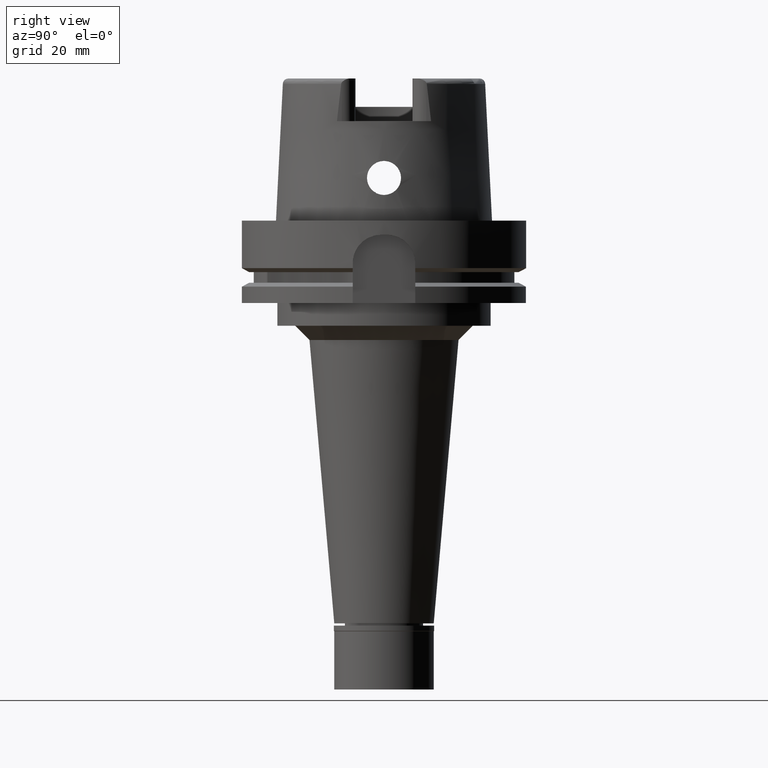
[diagram: clean part render]
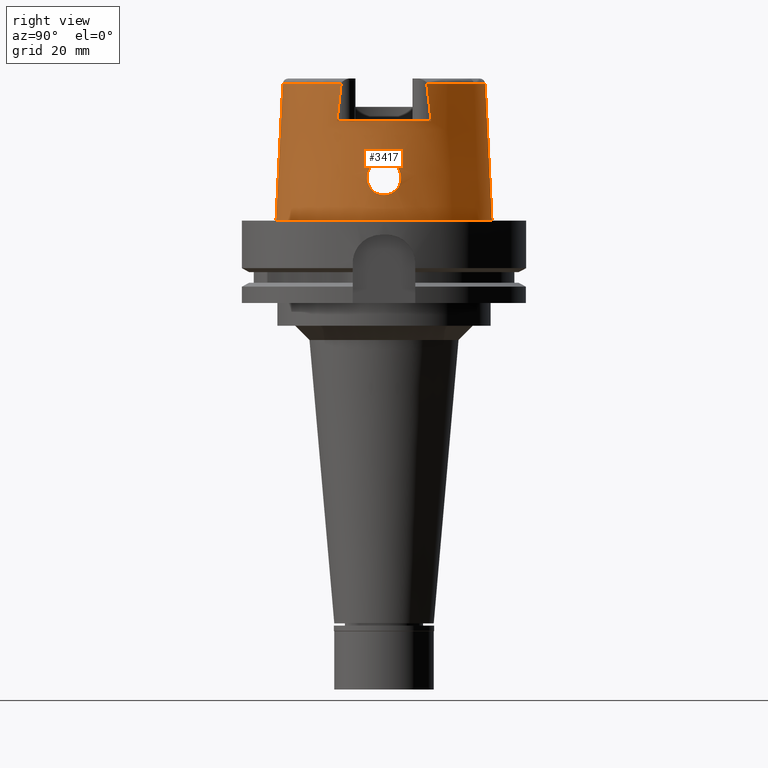
[diagram: same view with one face highlighted and labeled with its STEP entity id]
A machine part, right view. The second image highlights one B-rep face of the part: STEP entity #3417.
In plain terms, the highlighted conical surface has half-angle 2.862 deg.
Its self-contained STEP definition (entity closure, byte-faithful):
#15 = CARTESIAN_POINT ( 'NONE',  ( 36.85457335898542652, -3.253798266388082450, 20.04124897871600552 ) ) ;
#21 = CARTESIAN_POINT ( 'NONE',  ( 36.95523982656145989, 5.529030572524195719, 12.66964793381812804 ) ) ;
#33 = DIRECTION ( 'NONE',  ( 0.0000000000000000000, 0.0000000000000000000, -1.000000000000000000 ) ) ;
#48 = CARTESIAN_POINT ( 'NONE',  ( 37.20135130324674577, 4.363746516816009446, 10.87729898759333125 ) ) ;
#60 = DIRECTION ( 'NONE',  ( 0.9060280460804950309, -0.4232176505245974218, 0.0000000000000000000 ) ) ;
#79 = CARTESIAN_POINT ( 'NONE',  ( 37.35653249525500286, 3.287729809327149866, 9.980948807353369645 ) ) ;
#101 = CARTESIAN_POINT ( 'NONE',  ( 37.04898031199585517, -5.144495187537117431, 11.91180162934593234 ) ) ;
#107 = CARTESIAN_POINT ( 'NONE',  ( 36.77170340283488770, 5.998323807747335756, 14.84586871746355285 ) ) ;
#128 = CARTESIAN_POINT ( 'NONE',  ( 37.39725550713846047, -2.934102071555923175, 9.763118088053772681 ) ) ;
#134 = ORIENTED_EDGE ( 'NONE', *, *, #673, .T. ) ;
#137 = LINE ( 'NONE', #2226, #2557 ) ;
#166 = CARTESIAN_POINT ( 'NONE',  ( 36.86792965853042148, 3.018333182235669820, 20.18926292853594973 ) ) ;
#183 = CARTESIAN_POINT ( 'NONE',  ( 36.78131032406844270, -6.000419801345838522, 14.64910524598040631 ) ) ;
#208 = CARTESIAN_POINT ( 'NONE',  ( 36.86962136150560809, -5.813915311675263098, 13.50336500533334849 ) ) ;
#213 = CARTESIAN_POINT ( 'NONE',  ( 36.71902651044863575, 5.548463823218368951, 17.28354746236227157 ) ) ;
#249 = CARTESIAN_POINT ( 'NONE',  ( 36.93369841153609912, 1.519969756962879170, 20.86588656626253169 ) ) ;
#273 = DIRECTION ( 'NONE',  ( 0.0000000000000000000, 0.0000000000000000000, -1.000000000000000000 ) ) ;
#284 = VERTEX_POINT ( 'NONE', #4235 ) ;
#307 = CARTESIAN_POINT ( 'NONE',  ( 37.55000165825000380, 0.0000000000000000000, 9.000000000000000000 ) ) ;
#357 = CARTESIAN_POINT ( 'NONE',  ( 32.25000000000000000, -16.05145953533661185, 39.57800528547256391 ) ) ;
#396 = ORIENTED_EDGE ( 'NONE', *, *, #2393, .T. ) ;
#411 = CARTESIAN_POINT ( 'NONE',  ( 36.71471743785868114, -5.699807342214346484, 16.91677120293649139 ) ) ;
#418 = CARTESIAN_POINT ( 'NONE',  ( 37.54237954429251545, 0.7534733084072617881, 9.034802869986828355 ) ) ;
#439 = CARTESIAN_POINT ( 'NONE',  ( 36.71620885480069774, -5.813391255872144114, 16.53515844543332491 ) ) ;
#444 = CARTESIAN_POINT ( 'NONE',  ( 37.45939340440281029, 2.264876689963378542, 9.443880539944084163 ) ) ;
#464 = CARTESIAN_POINT ( 'NONE',  ( 36.85123313281129498, -3.313108649127621597, 20.00235078751029150 ) ) ;
#468 = CARTESIAN_POINT ( 'NONE',  ( 37.36305418552947089, 3.233430167436372127, 9.945685231381721891 ) ) ;
#498 = CARTESIAN_POINT ( 'NONE',  ( 37.23074821841457549, 4.183444221697280696, 10.69895465964187231 ) ) ;
#526 = CARTESIAN_POINT ( 'NONE',  ( 36.75576063044550779, -4.821039314594719016, 18.59330048664015322 ) ) ;
#531 = CARTESIAN_POINT ( 'NONE',  ( 37.33690346271502847, 3.448871331198321677, 10.08744184840441172 ) ) ;
#533 = CARTESIAN_POINT ( 'NONE',  ( 32.25000552016999222, -15.06439830907000044, 48.10004152623000095 ) ) ;
#538 = CARTESIAN_POINT ( 'NONE',  ( 0.0000000000000000000, 0.0000000000000000000, 48.09987853799000135 ) ) ;
#553 = CARTESIAN_POINT ( 'NONE',  ( 37.07758419378947679, -5.012585787029593121, 11.70239769246777684 ) ) ;
#558 = CARTESIAN_POINT ( 'NONE',  ( 36.71910958072929532, 5.545544434589466221, 17.29062471906177478 ) ) ;
#577 = CARTESIAN_POINT ( 'NONE',  ( 37.45644412486605290, -2.300685249194733828, 9.458609365823898329 ) ) ;
#608 = CARTESIAN_POINT ( 'NONE',  ( 36.90757951137266701, -5.696189673109968155, 13.11208310118762732 ) ) ;
#609 = EDGE_CURVE ( 'NONE', #1713, #3574, #2088, .T. ) ;
#615 = CARTESIAN_POINT ( 'NONE',  ( 36.85894363251622252, 3.184285589667381622, 20.08887233122822025 ) ) ;
#631 = CARTESIAN_POINT ( 'NONE',  ( 36.76087165488062425, -5.999800204498742850, 15.05438827536548985 ) ) ;
#657 = CARTESIAN_POINT ( 'NONE',  ( 36.94480014967199821, -5.567238668669252100, 12.76255512232842548 ) ) ;
#664 = CARTESIAN_POINT ( 'NONE',  ( 36.76916009664805784, 4.628588925101907670, 18.81937011863950815 ) ) ;
#673 = EDGE_CURVE ( 'NONE', #5516, #1466, #4080, .T. ) ;
#677 = CARTESIAN_POINT ( 'NONE',  ( 0.0000000000000000000, 0.0000000000000000000, 1.023181539494999863E-12 ) ) ;
#707 = DIRECTION ( 'NONE',  ( 0.0000000000000000000, 0.0000000000000000000, 1.000000000000000000 ) ) ;
#739 = LINE ( 'NONE', #2146, #5286 ) ;
#786 = CARTESIAN_POINT ( 'NONE',  ( 32.25000000000000000, 16.05167218318028688, 39.57715456663908071 ) ) ;
#787 = CARTESIAN_POINT ( 'NONE',  ( 32.25000000000000000, -15.55533879080327964, 43.94468579421589993 ) ) ;
#843 = CARTESIAN_POINT ( 'NONE',  ( 36.76566029139615921, 5.999906815838188301, 14.95958094293732010 ) ) ;
#849 = CARTESIAN_POINT ( 'NONE',  ( 32.25000000000000000, -16.55285457013000183, 35.00000000000000000 ) ) ;
#871 = CARTESIAN_POINT ( 'NONE',  ( 36.79780175130938602, -4.187045417410935499, 19.29764023401527950 ) ) ;
#878 = CARTESIAN_POINT ( 'NONE',  ( 36.96306944275978168, 5.499648889126287798, 12.60114552025537904 ) ) ;
#899 = CARTESIAN_POINT ( 'NONE',  ( 36.90237964645319124, -2.272847603763612945, 20.55285577762249360 ) ) ;
#904 = CARTESIAN_POINT ( 'NONE',  ( 37.27380537115670478, 3.905228966958478320, 10.44364606390630712 ) ) ;
#925 = AXIS2_PLACEMENT_3D ( 'NONE', #538, #2232, #60 ) ;
#927 = CARTESIAN_POINT ( 'NONE',  ( 36.87477302239791754, -2.874498647482214064, 20.26753687025442829 ) ) ;
#932 = CARTESIAN_POINT ( 'NONE',  ( 37.35850046496463506, 3.271442713556616422, 9.970292572778369333 ) ) ;
#955 = CARTESIAN_POINT ( 'NONE',  ( 36.79435038799910274, -4.238498976081209513, 19.24680091860885511 ) ) ;
#959 = EDGE_CURVE ( 'NONE', #4144, #284, #1710, .T. ) ;
#963 = CARTESIAN_POINT ( 'NONE',  ( 37.24668042066951301, 4.083403965036357164, 10.60328843659452680 ) ) ;
#984 = CARTESIAN_POINT ( 'NONE',  ( 37.01935567087116397, -5.274353906028143690, 12.13803092428669217 ) ) ;
#990 = CARTESIAN_POINT ( 'NONE',  ( 36.78894780111299667, 4.321307243020732436, 19.16266128978839234 ) ) ;
#1011 = CARTESIAN_POINT ( 'NONE',  ( 37.19964045387644092, -4.369297902691009483, 10.88739804148680790 ) ) ;
#1028 = EDGE_CURVE ( 'NONE', #284, #4144, #2735, .T. ) ;
#1032 = CARTESIAN_POINT ( 'NONE',  ( 32.24997259520495163, 15.06456602571880055, 48.09965197080279609 ) ) ;
#1091 = CARTESIAN_POINT ( 'NONE',  ( 37.10389505768986851, -4.887757585945935013, 11.51449243852074389 ) ) ;
#1097 = CARTESIAN_POINT ( 'NONE',  ( 36.94998175923000616, -1.394597051988999957E-13, 21.00000000000000000 ) ) ;
#1182 = CARTESIAN_POINT ( 'NONE',  ( 37.55000165825000380, 0.0000000000000000000, 9.000000000000000000 ) ) ;
#1192 = ORIENTED_EDGE ( 'NONE', *, *, #959, .F. ) ;
#1198 = CARTESIAN_POINT ( 'NONE',  ( 0.0000000000000000000, 35.59494289391000166, 48.09987853799000135 ) ) ;
#1204 = CARTESIAN_POINT ( 'NONE',  ( 32.24997259520495163, 15.06456602571880055, 48.09965197080279609 ) ) ;
#1285 = CARTESIAN_POINT ( 'NONE',  ( 36.73711114786940612, -5.141475258909128598, 18.09899810859322855 ) ) ;
#1289 = CARTESIAN_POINT ( 'NONE',  ( 37.35521687651922917, 3.298586860848880864, 9.988077525042807991 ) ) ;
#1321 = VERTEX_POINT ( 'NONE', #4785 ) ;
#1323 = CARTESIAN_POINT ( 'NONE',  ( 36.71655597566381601, 5.670117240174047168, 16.96656458700569914 ) ) ;
#1351 = CARTESIAN_POINT ( 'NONE',  ( 37.00631580209579141, 5.327637902192319252, 12.23846285733670669 ) ) ;
#1376 = CARTESIAN_POINT ( 'NONE',  ( 36.81012590804294859, -3.998932515636464124, 19.47498797830987982 ) ) ;
#1380 = CARTESIAN_POINT ( 'NONE',  ( 37.10850795904072896, 4.864945071327960946, 11.48687514057005643 ) ) ;
#1405 = CARTESIAN_POINT ( 'NONE',  ( 37.45415392294571433, -2.328345683967625757, 9.470178937981467371 ) ) ;
#1408 = CARTESIAN_POINT ( 'NONE',  ( 32.25000000000000000, 16.55285457013000183, 35.00000000000000000 ) ) ;
#1412 = CARTESIAN_POINT ( 'NONE',  ( 37.48354635218327502, 1.945613778295967267, 9.322656526190241877 ) ) ;
#1458 = CARTESIAN_POINT ( 'NONE',  ( 36.85246824458380388, -5.860252696474554490, 13.69782209351163260 ) ) ;
#1466 = VERTEX_POINT ( 'NONE', #1032 ) ;
#1469 = EDGE_CURVE ( 'NONE', #1321, #5346, #4822, .T. ) ;
#1482 = CARTESIAN_POINT ( 'NONE',  ( 37.03086444102822838, -5.224993334499239417, 12.04861993317523705 ) ) ;
#1489 = CARTESIAN_POINT ( 'NONE',  ( 36.83279304894314521, 3.623117239833821390, 19.78433902145615164 ) ) ;
#1513 = CARTESIAN_POINT ( 'NONE',  ( 37.42948613191583718, -2.608080179443450497, 9.595763437092866610 ) ) ;
#1518 = CARTESIAN_POINT ( 'NONE',  ( 36.82572834283975993, 3.739103409478851336, 19.69347930708046235 ) ) ;
#1541 = CARTESIAN_POINT ( 'NONE',  ( 36.84474273342841855, 3.423711952798281999, 19.92753559524922125 ) ) ;
#1547 = ORIENTED_EDGE ( 'NONE', *, *, #1677, .T. ) ;
#1677 = EDGE_CURVE ( 'NONE', #3574, #1321, #137, .T. ) ;
#1707 = CARTESIAN_POINT ( 'NONE',  ( 36.90187724948455639, -2.285052347079229662, 20.54784456236087564 ) ) ;
#1710 = B_SPLINE_CURVE_WITH_KNOTS ( 'NONE', 3,
 ( #1182, #2910, #418, #3446, #3558, #4298, #1412, #2140, #4409, #5591, #4377, #444, #2621, #1776, #4349, #1831, #2249, #1712, #468, #932, #79, #1289, #2652, #531, #2191, #3929, #904, #3873, #963, #2688, #498, #3991, #5169, #48, #2224, #3504, #4825, #1380, #3900, #3018, #3965, #1351, #3077, #4740, #878, #1802, #21, #2595, #5231, #4796, #3530, #3145, #5259, #3108, #107, #5288, #843, #2560, #4325, #2163, #1739, #3472, #5198, #1323, #3050, #4770, #5397, #3619, #213, #558, #5364, #4051, #3191, #4496, #664, #4944, #3248, #5419, #990, #2714, #2310, #4438, #2338, #5341, #1518, #1489, #4967, #1541, #2279, #615, #166, #4127, #4463, #4859, #2385, #3674, #249, #4019, #1097 ),
 .UNSPECIFIED., .F., .F.,
 ( 4, 2, 2, 1, 1, 1, 2, 2, 2, 2, 1, 1, 1, 2, 2, 2, 2, 1, 1, 2, 2, 2, 2, 2, 2, 1, 1, 2, 2, 2, 2, 2, 1, 2, 2, 2, 2, 1, 1, 1, 1, 2, 2, 2, 2, 2, 1, 1, 2, 2, 2, 1, 2, 2, 2, 1, 2, 2, 4 ),
 ( 0.0000000000000000000, 0.06250000000000216493, 0.09375000000000321965, 0.1093750000000037748, 0.1171875000000040107, 0.1210937500000041356, 0.1230468750000042327, 0.1250000000000043299, 0.1562500000000069944, 0.1718750000000082434, 0.1796875000000088818, 0.1835937500000091871, 0.1855468750000094091, 0.1865234375000094369, 0.1875000000000094647, 0.2187500000000093536, 0.2343750000000094091, 0.2421875000000095757, 0.2460937500000095757, 0.2480468750000096312, 0.2500000000000096589, 0.2812500000000103251, 0.2968750000000103806, 0.3125000000000104916, 0.3437500000000109912, 0.3593750000000112133, 0.3671875000000112688, 0.3710937500000113243, 0.3750000000000113243, 0.4375000000000090483, 0.4687500000000080491, 0.4843750000000074940, 0.4921875000000073275, 0.4960937500000074385, 0.5000000000000074385, 0.5625000000000063283, 0.5937500000000059952, 0.6093750000000055511, 0.6171875000000053291, 0.6210937500000052180, 0.6230468750000051070, 0.6240234375000049960, 0.6250000000000047740, 0.6875000000000005551, 0.7187499999999984457, 0.7343749999999974465, 0.7421874999999967804, 0.7460937499999965583, 0.7480468749999964473, 0.7499999999999964473, 0.7812499999999974465, 0.7968749999999980016, 0.8046874999999982236, 0.8124999999999984457, 0.8437499999999988898, 0.8593749999999990008, 0.8671874999999990008, 0.8749999999999988898, 1.000000000000000000 ),
 .UNSPECIFIED. ) ;
#1712 = CARTESIAN_POINT ( 'NONE',  ( 37.37200879162801925, 3.157378145736424724, 9.897493814652678523 ) ) ;
#1713 = VERTEX_POINT ( 'NONE', #533 ) ;
#1738 = ORIENTED_EDGE ( 'NONE', *, *, #1028, .F. ) ;
#1739 = CARTESIAN_POINT ( 'NONE',  ( 36.71984044655830814, 5.850219281305478525, 16.34658812609572820 ) ) ;
#1757 = DIRECTION ( 'NONE',  ( 0.8896561898442558736, 0.4566309931134779343, 0.0000000000000000000 ) ) ;
#1776 = CARTESIAN_POINT ( 'NONE',  ( 37.42924552239259128, 2.615721727729253931, 9.596655347580457018 ) ) ;
#1798 = CARTESIAN_POINT ( 'NONE',  ( 36.94998175922999195, -0.3631582503722557975, 21.00000000000000000 ) ) ;
#1802 = CARTESIAN_POINT ( 'NONE',  ( 36.95774489223280312, 5.519693041271791500, 12.64763322400723311 ) ) ;
#1826 = CARTESIAN_POINT ( 'NONE',  ( 36.94685047858938987, -5.559788466716807598, 12.74416401142805277 ) ) ;
#1831 = CARTESIAN_POINT ( 'NONE',  ( 37.39389957565043687, 2.961858504030635331, 9.781037490232705522 ) ) ;
#1832 = DIRECTION ( 'NONE',  ( 5.154182075151068004E-05, -0.04993927430816067631, -0.9987522546783135224 ) ) ;
#1855 = CARTESIAN_POINT ( 'NONE',  ( 37.42175158480954167, -2.689182493007880037, 9.635601683245873517 ) ) ;
#1860 = AXIS2_PLACEMENT_3D ( 'NONE', #2386, #273, #5589 ) ;
#1883 = ORIENTED_EDGE ( 'NONE', *, *, #3598, .F. ) ;
#1888 = EDGE_CURVE ( 'NONE', #5516, #5346, #739, .T. ) ;
#1909 = CARTESIAN_POINT ( 'NONE',  ( 36.93068084710078836, -5.617683048002138690, 12.89133533381973606 ) ) ;
#1935 = CARTESIAN_POINT ( 'NONE',  ( 37.06944078969834777, -5.050823309900860814, 11.76108891316403771 ) ) ;
#1967 = ORIENTED_EDGE ( 'NONE', *, *, #5097, .F. ) ;
#2077 = CARTESIAN_POINT ( 'NONE',  ( 32.25000000000000000, -16.55285457013000183, 35.00000000000000000 ) ) ;
#2088 = CIRCLE ( 'NONE', #925, 35.59494289391000166 ) ;
#2134 = CARTESIAN_POINT ( 'NONE',  ( 36.88764643510791075, -2.613024244806410046, 20.40470655184175897 ) ) ;
#2140 = CARTESIAN_POINT ( 'NONE',  ( 37.47145815582884154, 2.110898902811264133, 9.383189747274018444 ) ) ;
#2146 = CARTESIAN_POINT ( 'NONE',  ( 0.002482252536764999965, 35.59494263424999616, 48.09987853799000135 ) ) ;
#2158 = CARTESIAN_POINT ( 'NONE',  ( 36.72196373336264941, -5.460058584914603941, 17.48791676754009217 ) ) ;
#2163 = CARTESIAN_POINT ( 'NONE',  ( 36.73088728631200439, 5.963273442921371625, 15.76995501670567990 ) ) ;
#2186 = CARTESIAN_POINT ( 'NONE',  ( 36.79486479208713945, -4.230860244557368866, 19.25440632132363916 ) ) ;
#2191 = CARTESIAN_POINT ( 'NONE',  ( 37.31760234860533387, 3.596830974816748849, 10.19359970013341865 ) ) ;
#2224 = CARTESIAN_POINT ( 'NONE',  ( 37.17830824646888033, 4.497059052841780868, 11.02314104154433849 ) ) ;
#2226 = CARTESIAN_POINT ( 'NONE',  ( -0.002482252536761000127, -35.59494263424999616, 48.09987853799000135 ) ) ;
#2232 = DIRECTION ( 'NONE',  ( 0.0000000000000000000, 0.0000000000000000000, -1.000000000000000000 ) ) ;
#2245 = CARTESIAN_POINT ( 'NONE',  ( 36.90313027499487220, -2.254538170085857551, 20.56033827074919529 ) ) ;
#2249 = CARTESIAN_POINT ( 'NONE',  ( 37.37942216537346951, 3.092179744477247638, 9.857921792027235952 ) ) ;
#2272 = CARTESIAN_POINT ( 'NONE',  ( 37.20985621195405457, -4.309484051065490817, 10.82514528163371637 ) ) ;
#2279 = CARTESIAN_POINT ( 'NONE',  ( 36.84722144884868555, 3.382054583841843876, 19.95620573744884396 ) ) ;
#2303 = CARTESIAN_POINT ( 'NONE',  ( 37.21841516280429829, -4.258839404256502981, 10.77359671046755984 ) ) ;
#2310 = CARTESIAN_POINT ( 'NONE',  ( 36.79221695802478820, 4.270941136401894767, 19.21417489450502813 ) ) ;
#2331 = CARTESIAN_POINT ( 'NONE',  ( 37.16180421871322181, -4.583096864683446015, 11.12637670599256090 ) ) ;
#2338 = CARTESIAN_POINT ( 'NONE',  ( 36.80255027986379446, 4.111923164476504411, 19.37386066773265725 ) ) ;
#2348 = AXIS2_PLACEMENT_3D ( 'NONE', #5296, #3150, #2696 ) ;
#2353 = CARTESIAN_POINT ( 'NONE',  ( 37.17923918027624808, -4.486608826909555425, 11.01410227270497089 ) ) ;
#2376 = CARTESIAN_POINT ( 'NONE',  ( 36.96692811447773153, -5.486345123639744692, 12.56527835986519648 ) ) ;
#2385 = CARTESIAN_POINT ( 'NONE',  ( 36.89720180196346888, 2.396385874053454490, 20.50089800302485088 ) ) ;
#2386 = CARTESIAN_POINT ( 'NONE',  ( 0.0000000000000000000, 0.0000000000000000000, 24.04993926899999934 ) ) ;
#2393 = EDGE_CURVE ( 'NONE', #3631, #2788, #2668, .T. ) ;
#2553 = CARTESIAN_POINT ( 'NONE',  ( 36.71932879702220021, -5.538168865273467745, 17.30841963616053647 ) ) ;
#2557 = VECTOR ( 'NONE', #1832, 1000.000000000000227 ) ;
#2559 = B_SPLINE_CURVE_WITH_KNOTS ( 'NONE', 3,
 ( #4179, #786, #4597, #1204 ),
 .UNSPECIFIED., .F., .F.,
 ( 4, 4 ),
 ( 0.0000000000000000000, 1.000000000000000000 ),
 .UNSPECIFIED. ) ;
#2560 = CARTESIAN_POINT ( 'NONE',  ( 36.76455102892791871, 6.000017024433905277, 14.98107322155624033 ) ) ;
#2590 = CARTESIAN_POINT ( 'NONE',  ( 36.73198324550582328, -5.236770646857031863, 17.93428282280029507 ) ) ;
#2595 = CARTESIAN_POINT ( 'NONE',  ( 36.90767284457751884, 5.704294105466313880, 13.09073213763289090 ) ) ;
#2615 = CARTESIAN_POINT ( 'NONE',  ( 36.87019529317930733, -2.964167355062032438, 20.21776577746368631 ) ) ;
#2621 = CARTESIAN_POINT ( 'NONE',  ( 37.44482247248021167, 2.444141203560766140, 9.517352663553841907 ) ) ;
#2646 = CARTESIAN_POINT ( 'NONE',  ( 36.90486097321354464, -2.211800908984793868, 20.57755752650328418 ) ) ;
#2652 = CARTESIAN_POINT ( 'NONE',  ( 37.35442680991058495, 3.305085175248512197, 9.992361906992872633 ) ) ;
#2668 = CIRCLE ( 'NONE', #3936, 36.24995854370000359 ) ;
#2680 = CARTESIAN_POINT ( 'NONE',  ( 36.72417677239266709, -5.403958487521046017, 17.60866077456927670 ) ) ;
#2688 = CARTESIAN_POINT ( 'NONE',  ( 37.23558469666075155, 4.153382017068294907, 10.66978355217547225 ) ) ;
#2696 = DIRECTION ( 'NONE',  ( 0.0000000000000000000, 1.000000000000000000, 0.0000000000000000000 ) ) ;
#2709 = CARTESIAN_POINT ( 'NONE',  ( 36.74781535825380985, -5.991733129801088964, 15.33912322331754119 ) ) ;
#2714 = CARTESIAN_POINT ( 'NONE',  ( 36.79090408789134159, 4.291162142300021465, 19.19358268078471497 ) ) ;
#2735 = B_SPLINE_CURVE_WITH_KNOTS ( 'NONE', 3,
 ( #2989, #1798, #3440, #5164, #3500, #3525, #4766, #4791, #2646, #2245, #899, #1707, #5227, #3071, #2134, #927, #2615, #3416, #4344, #15, #4370, #464, #5254, #3959, #4735, #3869, #1376, #4707, #871, #4405, #2186, #955, #5586, #526, #1285, #2590, #4321, #2680, #2158, #3987, #5139, #3466, #2553, #4292, #411, #439, #3895, #5191, #2793, #2709, #4488, #2766, #631, #2816, #183, #4961, #1458, #208, #4511, #608, #2736, #1909, #4093, #657, #1826, #3554, #3162, #2376, #4536, #984, #1482, #101, #4853, #1935, #4432, #553, #4043, #1091, #3636, #2331, #2353, #1011, #2272, #3666, #5280, #2303, #4068, #5390, #4013, #128, #1855, #1513, #3586, #3611, #3242, #1405, #4457, #577, #5336, #3136, #5313 ),
 .UNSPECIFIED., .F., .F.,
 ( 4, 2, 2, 1, 1, 1, 1, 2, 2, 2, 2, 1, 1, 2, 2, 2, 1, 1, 1, 2, 2, 2, 2, 2, 1, 1, 2, 2, 2, 2, 1, 1, 2, 2, 2, 2, 2, 1, 1, 1, 2, 2, 2, 2, 1, 1, 2, 2, 2, 1, 1, 1, 2, 2, 2, 2, 2, 1, 1, 2, 2, 4 ),
 ( 0.0000000000000000000, 0.06250000000001788847, 0.09375000000002681189, 0.1093750000000311834, 0.1171875000000334038, 0.1210937500000345279, 0.1230468750000350830, 0.1240234375000354022, 0.1250000000000357214, 0.1562500000000410505, 0.1718750000000437428, 0.1796875000000449363, 0.1835937500000455191, 0.1855468750000458245, 0.1875000000000461298, 0.2187500000000495159, 0.2343750000000512368, 0.2421875000000523470, 0.2460937500000529299, 0.2480468750000533740, 0.2500000000000537903, 0.3125000000000658362, 0.3437500000000718869, 0.3593750000000752176, 0.3671875000000768829, 0.3710937500000777156, 0.3730468750000778266, 0.3750000000000779377, 0.4375000000000758837, 0.4687500000000745515, 0.4843750000000737188, 0.4921875000000733302, 0.4960937500000731082, 0.5000000000000728306, 0.5625000000000689448, 0.5937500000000669464, 0.6093750000000658362, 0.6171875000000652811, 0.6210937500000649480, 0.6230468750000646150, 0.6240234375000643929, 0.6250000000000640599, 0.6562500000000583977, 0.6718750000000556222, 0.6796875000000542899, 0.6835937500000537348, 0.6855468750000535127, 0.6875000000000532907, 0.7187500000000508482, 0.7343750000000495159, 0.7421875000000489608, 0.7460937500000486278, 0.7480468750000482947, 0.7500000000000479616, 0.8125000000000358602, 0.8437500000000296430, 0.8593750000000264233, 0.8671875000000249800, 0.8710937500000242029, 0.8730468750000238698, 0.8750000000000235367, 1.000000000000000000 ),
 .UNSPECIFIED. ) ;
#2736 = CARTESIAN_POINT ( 'NONE',  ( 36.92287895974632761, -5.644574785711887976, 12.96493802533631090 ) ) ;
#2766 = CARTESIAN_POINT ( 'NONE',  ( 36.75857722100536051, -5.999184118844500091, 15.10173734124862754 ) ) ;
#2788 = VERTEX_POINT ( 'NONE', #849 ) ;
#2793 = CARTESIAN_POINT ( 'NONE',  ( 36.74230684364371058, -5.981357832372403038, 15.48226559619284259 ) ) ;
#2816 = CARTESIAN_POINT ( 'NONE',  ( 36.76210510960908096, -5.999969291128494753, 15.02948134557362003 ) ) ;
#2825 = FACE_BOUND ( 'NONE', #3650, .T. ) ;
#2910 = CARTESIAN_POINT ( 'NONE',  ( 37.55000165824999669, 0.3725651092509016382, 9.000000000000001776 ) ) ;
#2989 = CARTESIAN_POINT ( 'NONE',  ( 36.94998175923000616, -1.394597051988999957E-13, 21.00000000000000000 ) ) ;
#3015 = CARTESIAN_POINT ( 'NONE',  ( 1.065814103639999922E-14, -35.59494289391000166, 48.09987853799000135 ) ) ;
#3018 = CARTESIAN_POINT ( 'NONE',  ( 37.06201828056726555, 5.085026755938685916, 11.80942053380415224 ) ) ;
#3050 = CARTESIAN_POINT ( 'NONE',  ( 36.71753689262029496, 5.609068337178880093, 17.13138083986102345 ) ) ;
#3061 = ORIENTED_EDGE ( 'NONE', *, *, #1469, .T. ) ;
#3071 = CARTESIAN_POINT ( 'NONE',  ( 36.89508234365349892, -2.448813485944450363, 20.47998432950904757 ) ) ;
#3077 = CARTESIAN_POINT ( 'NONE',  ( 36.98991360867736944, 5.395393654871225131, 12.37181202727904683 ) ) ;
#3108 = CARTESIAN_POINT ( 'NONE',  ( 36.77559331272507848, 5.996032165252452195, 14.77699010446722561 ) ) ;
#3136 = CARTESIAN_POINT ( 'NONE',  ( 37.55000165824999669, -0.7490591626260816316, 8.999999999999994671 ) ) ;
#3145 = CARTESIAN_POINT ( 'NONE',  ( 36.78949159559145698, 5.983486453677170580, 14.54521603343799363 ) ) ;
#3150 = DIRECTION ( 'NONE',  ( 0.0000000000000000000, 0.0000000000000000000, -1.000000000000000000 ) ) ;
#3162 = CARTESIAN_POINT ( 'NONE',  ( 36.94905369668621375, -5.551755325976531097, 12.72446929267389848 ) ) ;
#3191 = CARTESIAN_POINT ( 'NONE',  ( 36.74922096801803661, 4.946676914252337909, 18.40126551933426313 ) ) ;
#3205 = AXIS2_PLACEMENT_3D ( 'NONE', #677, #707, #3980 ) ;
#3242 = CARTESIAN_POINT ( 'NONE',  ( 37.45167754845891039, -2.358007411836528622, 9.482699018384295186 ) ) ;
#3248 = CARTESIAN_POINT ( 'NONE',  ( 36.78079601895127837, 4.447319055200290805, 19.02795957292704898 ) ) ;
#3416 = CARTESIAN_POINT ( 'NONE',  ( 36.86289881187848749, -3.101799393201154942, 20.13631020078212686 ) ) ;
#3417 = ADVANCED_FACE ( 'NONE', ( #5398, #2825 ), #3583, .T. ) ;
#3440 = CARTESIAN_POINT ( 'NONE',  ( 36.94593093642788517, -0.7414479164965097624, 20.96696163294818405 ) ) ;
#3446 = CARTESIAN_POINT ( 'NONE',  ( 37.51951320242009302, 1.326388423854468535, 9.145214055521348584 ) ) ;
#3466 = CARTESIAN_POINT ( 'NONE',  ( 36.71957857212929355, -5.529860257604926943, 17.32825280591639228 ) ) ;
#3472 = CARTESIAN_POINT ( 'NONE',  ( 36.71763611367676816, 5.802818758811371325, 16.53846350269793675 ) ) ;
#3500 = CARTESIAN_POINT ( 'NONE',  ( 36.92871493951894024, -1.515123200040275453, 20.80912843644669863 ) ) ;
#3504 = CARTESIAN_POINT ( 'NONE',  ( 37.14350679644518038, 4.685766028675929284, 11.25122239262510604 ) ) ;
#3525 = CARTESIAN_POINT ( 'NONE',  ( 36.91960058821420176, -1.808267391346471742, 20.72193690257079979 ) ) ;
#3530 = CARTESIAN_POINT ( 'NONE',  ( 36.80815762370472299, 5.957537315258021771, 14.26277308267506605 ) ) ;
#3554 = CARTESIAN_POINT ( 'NONE',  ( 36.94822053460028854, -5.554798339113931505, 12.73190405543532933 ) ) ;
#3558 = CARTESIAN_POINT ( 'NONE',  ( 37.50998555997327344, 1.517592506718254519, 9.191699911534087164 ) ) ;
#3574 = VERTEX_POINT ( 'NONE', #3015 ) ;
#3583 = CONICAL_SURFACE ( 'NONE', #1860, 36.79747973821000073, 0.04996004983832824653 ) ;
#3586 = CARTESIAN_POINT ( 'NONE',  ( 37.44044173439926482, -2.487510234669529474, 9.539756727490857457 ) ) ;
#3598 = EDGE_CURVE ( 'NONE', #1713, #2788, #5252, .T. ) ;
#3611 = CARTESIAN_POINT ( 'NONE',  ( 37.44575798109693210, -2.427495654670445813, 9.512690912785036090 ) ) ;
#3619 = CARTESIAN_POINT ( 'NONE',  ( 36.71889293941500654, 5.553254265580155113, 17.27187298769979762 ) ) ;
#3631 = VERTEX_POINT ( 'NONE', #1408 ) ;
#3636 = CARTESIAN_POINT ( 'NONE',  ( 37.12700342142721155, -4.770419183647396366, 11.35554695570349715 ) ) ;
#3650 = EDGE_LOOP ( 'NONE', ( #1192, #1738 ) ) ;
#3666 = CARTESIAN_POINT ( 'NONE',  ( 37.21423763426104614, -4.283604238065451320, 10.79870414871968975 ) ) ;
#3674 = CARTESIAN_POINT ( 'NONE',  ( 36.89909629768657595, 2.351861135408390702, 20.52010484799364320 ) ) ;
#3824 = EDGE_LOOP ( 'NONE', ( #1883, #5355, #1547, #3061, #4802, #134, #1967, #396 ) ) ;
#3869 = CARTESIAN_POINT ( 'NONE',  ( 36.81715631358961360, -3.887142167145137162, 19.57163267877658086 ) ) ;
#3873 = CARTESIAN_POINT ( 'NONE',  ( 37.25586636942158947, 4.023786229518713675, 10.54893967711427472 ) ) ;
#3895 = CARTESIAN_POINT ( 'NONE',  ( 36.72724461711472088, -5.925783873525110934, 15.96080321652184431 ) ) ;
#3900 = CARTESIAN_POINT ( 'NONE',  ( 37.09653683475418262, 4.923253218619887406, 11.56912527844142424 ) ) ;
#3915 = CARTESIAN_POINT ( 'NONE',  ( 0.0000000000000000000, 0.0000000000000000000, 35.00000000000000000 ) ) ;
#3929 = CARTESIAN_POINT ( 'NONE',  ( 37.28518751128795827, 3.827099167601020202, 10.37798948645318831 ) ) ;
#3936 = AXIS2_PLACEMENT_3D ( 'NONE', #3915, #33, #1757 ) ;
#3959 = CARTESIAN_POINT ( 'NONE',  ( 36.84054995967238000, -3.500639162298696316, 19.87691744490598822 ) ) ;
#3965 = CARTESIAN_POINT ( 'NONE',  ( 37.03946302240268551, 5.186539888120930364, 11.97691283326612322 ) ) ;
#3980 = DIRECTION ( 'NONE',  ( 0.0000000000000000000, -1.000000000000000000, 0.0000000000000000000 ) ) ;
#3987 = CARTESIAN_POINT ( 'NONE',  ( 36.72095926933153720, -5.487190704883518677, 17.42776760261489244 ) ) ;
#3991 = CARTESIAN_POINT ( 'NONE',  ( 37.22750586226005964, 4.203499434744218277, 10.71855292243687963 ) ) ;
#4013 = CARTESIAN_POINT ( 'NONE',  ( 37.37920154022158670, -3.099554088438776667, 9.858807036692315506 ) ) ;
#4019 = CARTESIAN_POINT ( 'NONE',  ( 36.94998175922998485, 0.7278236855996604859, 20.99999999999999289 ) ) ;
#4043 = CARTESIAN_POINT ( 'NONE',  ( 37.07944034949226619, -5.003809135577720113, 11.68910189932267052 ) ) ;
#4051 = CARTESIAN_POINT ( 'NONE',  ( 36.73062635922434538, 5.263057009952135878, 17.90742315771721493 ) ) ;
#4068 = CARTESIAN_POINT ( 'NONE',  ( 37.27342246941189785, -3.931114297973247851, 10.44490115549452369 ) ) ;
#4080 = CIRCLE ( 'NONE', #2348, 35.59494289391000166 ) ;
#4093 = CARTESIAN_POINT ( 'NONE',  ( 36.94004933455767770, -5.584378040715781921, 12.80547493322663932 ) ) ;
#4127 = CARTESIAN_POINT ( 'NONE',  ( 36.88082111617194414, 2.758243680819354893, 20.32933279429382267 ) ) ;
#4144 = VERTEX_POINT ( 'NONE', #307 ) ;
#4179 = CARTESIAN_POINT ( 'NONE',  ( 32.25000000000000000, 16.55285457013000183, 35.00000000000000000 ) ) ;
#4235 = CARTESIAN_POINT ( 'NONE',  ( 36.94998175923000616, -1.394597051988999957E-13, 21.00000000000000000 ) ) ;
#4292 = CARTESIAN_POINT ( 'NONE',  ( 36.71922847700659531, -5.541574442519262789, 17.30024144842391820 ) ) ;
#4298 = CARTESIAN_POINT ( 'NONE',  ( 37.49283580356893708, 1.803149696091535192, 9.276494919455808841 ) ) ;
#4308 = DIRECTION ( 'NONE',  ( -5.154182075159067383E-05, 0.04993927430816067631, -0.9987522546783135224 ) ) ;
#4321 = CARTESIAN_POINT ( 'NONE',  ( 36.72592427970312912, -5.364110252023095882, 17.68975218693689655 ) ) ;
#4325 = CARTESIAN_POINT ( 'NONE',  ( 36.74416363429327248, 5.999695096183402576, 15.38426938624130358 ) ) ;
#4344 = CARTESIAN_POINT ( 'NONE',  ( 36.85914309935986921, -3.171395856282790859, 20.09388249665637716 ) ) ;
#4349 = CARTESIAN_POINT ( 'NONE',  ( 37.40308539954988731, 2.875079783385489307, 9.732794893247037393 ) ) ;
#4370 = CARTESIAN_POINT ( 'NONE',  ( 36.85257459687434789, -3.289353727239169523, 20.01800302703443890 ) ) ;
#4377 = CARTESIAN_POINT ( 'NONE',  ( 37.46043437577900193, 2.251970359333478111, 9.438634198802740016 ) ) ;
#4405 = CARTESIAN_POINT ( 'NONE',  ( 36.79603966127412207, -4.213366307908128050, 19.27173219095945100 ) ) ;
#4409 = CARTESIAN_POINT ( 'NONE',  ( 37.46510143188384490, 2.193262516983267574, 9.415134949131667597 ) ) ;
#4432 = CARTESIAN_POINT ( 'NONE',  ( 37.07431617320635553, -5.027968615200914648, 11.72590029847478377 ) ) ;
#4438 = CARTESIAN_POINT ( 'NONE',  ( 36.79297988199976288, 4.259196576718165872, 19.22603776391197172 ) ) ;
#4457 = CARTESIAN_POINT ( 'NONE',  ( 37.45579137639160905, -2.308598250113387707, 9.461905677801446757 ) ) ;
#4463 = CARTESIAN_POINT ( 'NONE',  ( 36.88711994964776153, 2.625412980662201523, 20.39673761981572753 ) ) ;
#4488 = CARTESIAN_POINT ( 'NONE',  ( 36.75520430954323103, -5.997838674880071608, 15.17282634178888223 ) ) ;
#4496 = CARTESIAN_POINT ( 'NONE',  ( 36.75653007627474267, 4.828228318364913285, 18.56845981743786567 ) ) ;
#4511 = CARTESIAN_POINT ( 'NONE',  ( 36.89778564757059343, -5.727707615563693011, 13.21009850543056530 ) ) ;
#4536 = CARTESIAN_POINT ( 'NONE',  ( 36.98653479186391024, -5.410826303749213473, 12.39968017810307899 ) ) ;
#4597 = CARTESIAN_POINT ( 'NONE',  ( 32.25000000000000000, 15.55558130564939567, 43.94359286779842222 ) ) ;
#4707 = CARTESIAN_POINT ( 'NONE',  ( 36.80191179850883287, -4.125073597687790361, 19.35752356899445914 ) ) ;
#4735 = CARTESIAN_POINT ( 'NONE',  ( 36.83120344499207732, -3.658939787584094105, 19.75930225346712277 ) ) ;
#4738 = CARTESIAN_POINT ( 'NONE',  ( 32.25000552016999222, -15.06439830907000044, 48.10004152623000095 ) ) ;
#4740 = CARTESIAN_POINT ( 'NONE',  ( 36.97107769564209434, 5.469187824416382959, 12.53171190398763457 ) ) ;
#4766 = CARTESIAN_POINT ( 'NONE',  ( 36.91466364792411525, -1.955066589415785483, 20.67420690998008936 ) ) ;
#4770 = CARTESIAN_POINT ( 'NONE',  ( 36.71826982678418716, 5.576903453819993750, 17.21342714077890435 ) ) ;
#4785 = CARTESIAN_POINT ( 'NONE',  ( 0.0000000000000000000, -38.00001658251999714, 6.821210263297000155E-13 ) ) ;
#4791 = CARTESIAN_POINT ( 'NONE',  ( 36.90823929613641496, -2.126273191693851317, 20.61103980981948425 ) ) ;
#4792 = CARTESIAN_POINT ( 'NONE',  ( 0.0000000000000000000, 38.00001658251999714, 1.023181539494999863E-12 ) ) ;
#4796 = CARTESIAN_POINT ( 'NONE',  ( 36.82225838300821152, 5.930942061810208443, 14.07103620846129566 ) ) ;
#4802 = ORIENTED_EDGE ( 'NONE', *, *, #1888, .F. ) ;
#4822 = CIRCLE ( 'NONE', #3205, 38.00001658251999714 ) ;
#4825 = CARTESIAN_POINT ( 'NONE',  ( 37.13186683562777546, 4.746792466653050546, 11.32880154397658146 ) ) ;
#4853 = CARTESIAN_POINT ( 'NONE',  ( 37.05825142641265302, -5.102631713467073560, 11.84271860121377351 ) ) ;
#4859 = CARTESIAN_POINT ( 'NONE',  ( 36.89319844010618255, 2.488527337084657898, 20.45983294521252205 ) ) ;
#4944 = CARTESIAN_POINT ( 'NONE',  ( 36.77364782977051760, 4.558384542432639464, 18.90301816071105989 ) ) ;
#4961 = CARTESIAN_POINT ( 'NONE',  ( 36.80587811518294217, -5.968770580326600239, 14.27426339064203731 ) ) ;
#4967 = CARTESIAN_POINT ( 'NONE',  ( 36.83995049438868818, 3.503891532017768373, 19.87084743243267226 ) ) ;
#5097 = EDGE_CURVE ( 'NONE', #3631, #1466, #2559, .T. ) ;
#5139 = CARTESIAN_POINT ( 'NONE',  ( 36.71996599172546638, -5.517288947232040996, 17.35803693592301755 ) ) ;
#5164 = CARTESIAN_POINT ( 'NONE',  ( 36.93377846802155062, -1.320312059271183447, 20.85622490189979672 ) ) ;
#5169 = CARTESIAN_POINT ( 'NONE',  ( 37.22566677179958816, 4.214813397345712254, 10.72969554206628473 ) ) ;
#5191 = CARTESIAN_POINT ( 'NONE',  ( 36.73238964403623896, -5.953612642405698097, 15.76901430468022980 ) ) ;
#5198 = CARTESIAN_POINT ( 'NONE',  ( 36.71654653490902120, 5.716830651076108438, 16.82420974153285798 ) ) ;
#5227 = CARTESIAN_POINT ( 'NONE',  ( 36.90156843379067908, -2.292518513563296167, 20.54476195610528322 ) ) ;
#5231 = CARTESIAN_POINT ( 'NONE',  ( 36.86953088260263200, 5.819979767166956641, 13.48870076559099829 ) ) ;
#5252 = B_SPLINE_CURVE_WITH_KNOTS ( 'NONE', 3,
 ( #4738, #787, #357, #2077 ),
 .UNSPECIFIED., .F., .F.,
 ( 4, 4 ),
 ( 0.0000000000000000000, 1.000000000000000000 ),
 .UNSPECIFIED. ) ;
#5254 = CARTESIAN_POINT ( 'NONE',  ( 36.85046125195796662, -3.326708208039638404, 19.99331193242085192 ) ) ;
#5259 = CARTESIAN_POINT ( 'NONE',  ( 36.78368377136072098, 5.989813296405976040, 14.63850693618214116 ) ) ;
#5280 = CARTESIAN_POINT ( 'NONE',  ( 37.21715930252655369, -4.266296845163772389, 10.78113008883858903 ) ) ;
#5286 = VECTOR ( 'NONE', #4308, 1000.000000000000227 ) ;
#5288 = CARTESIAN_POINT ( 'NONE',  ( 36.76804647208612664, 5.999429092852061274, 14.91417425353873405 ) ) ;
#5296 = CARTESIAN_POINT ( 'NONE',  ( 0.0000000000000000000, 0.0000000000000000000, 48.09987853799000135 ) ) ;
#5313 = CARTESIAN_POINT ( 'NONE',  ( 37.55000165825000380, 0.0000000000000000000, 9.000000000000000000 ) ) ;
#5336 = CARTESIAN_POINT ( 'NONE',  ( 37.51913731733982615, -1.534104571059917488, 9.142248273737109798 ) ) ;
#5341 = CARTESIAN_POINT ( 'NONE',  ( 36.81172258308920675, 3.966476796719705877, 19.50617699077162825 ) ) ;
#5346 = VERTEX_POINT ( 'NONE', #4792 ) ;
#5355 = ORIENTED_EDGE ( 'NONE', *, *, #609, .T. ) ;
#5364 = CARTESIAN_POINT ( 'NONE',  ( 36.72267357466381554, 5.422019584404793591, 17.58897493195064143 ) ) ;
#5390 = CARTESIAN_POINT ( 'NONE',  ( 37.31986989406253485, -3.597220678729216026, 10.18165942247635947 ) ) ;
#5397 = CARTESIAN_POINT ( 'NONE',  ( 36.71869691278758552, 5.560410601731428315, 17.25435409544361320 ) ) ;
#5398 = FACE_OUTER_BOUND ( 'NONE', #3824, .T. ) ;
#5419 = CARTESIAN_POINT ( 'NONE',  ( 36.78447426091591410, 4.390347064633801644, 19.09029678280323239 ) ) ;
#5516 = VERTEX_POINT ( 'NONE', #1198 ) ;
#5586 = CARTESIAN_POINT ( 'NONE',  ( 36.77254798614335840, -4.561075754843173513, 18.92336579966082155 ) ) ;
#5589 = DIRECTION ( 'NONE',  ( 0.0000000000000000000, -1.000000000000000000, 0.0000000000000000000 ) ) ;
#5591 = CARTESIAN_POINT ( 'NONE',  ( 37.46231013038573820, 2.228496234770369178, 9.429186360534284717 ) ) ;